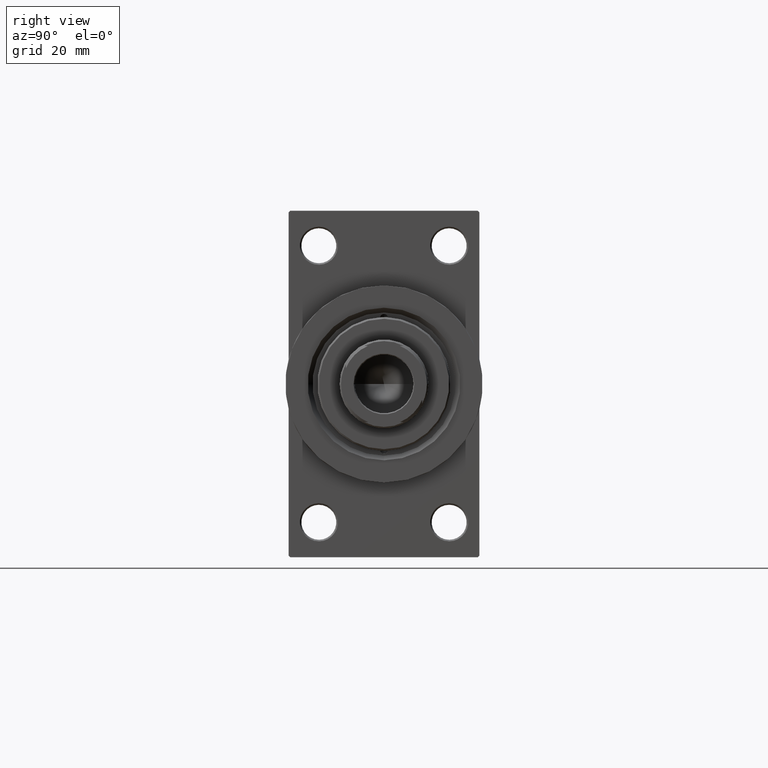
[diagram: clean part render]
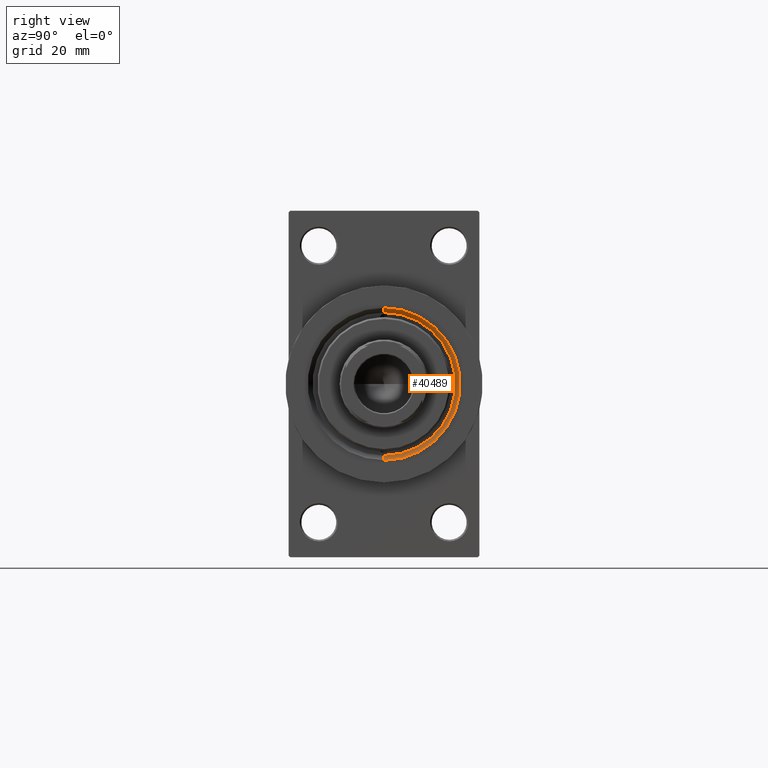
[diagram: same view with one face highlighted and labeled with its STEP entity id]
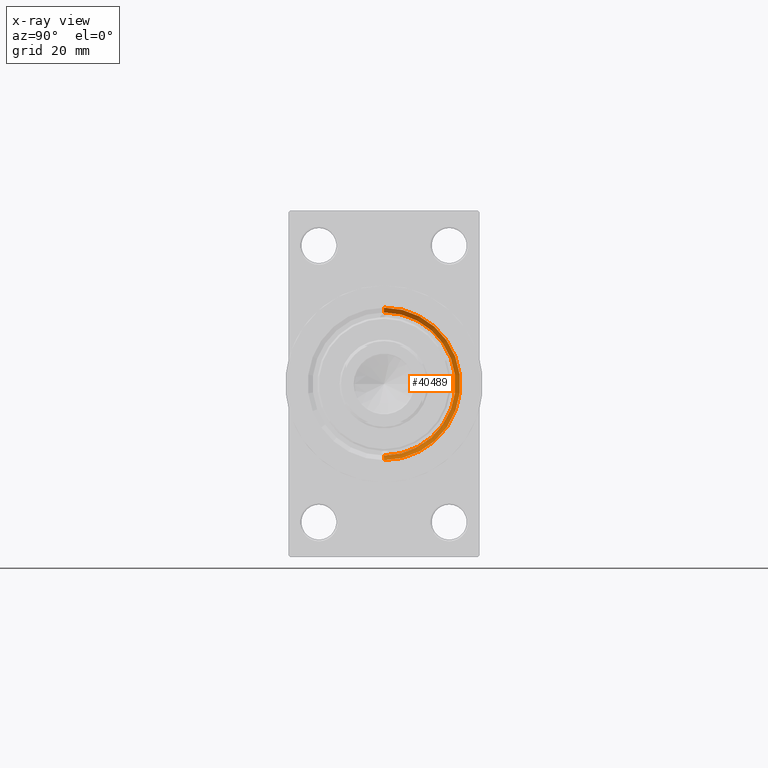
[diagram: x-ray of the same camera — body ghosted, the highlighted face saturated]
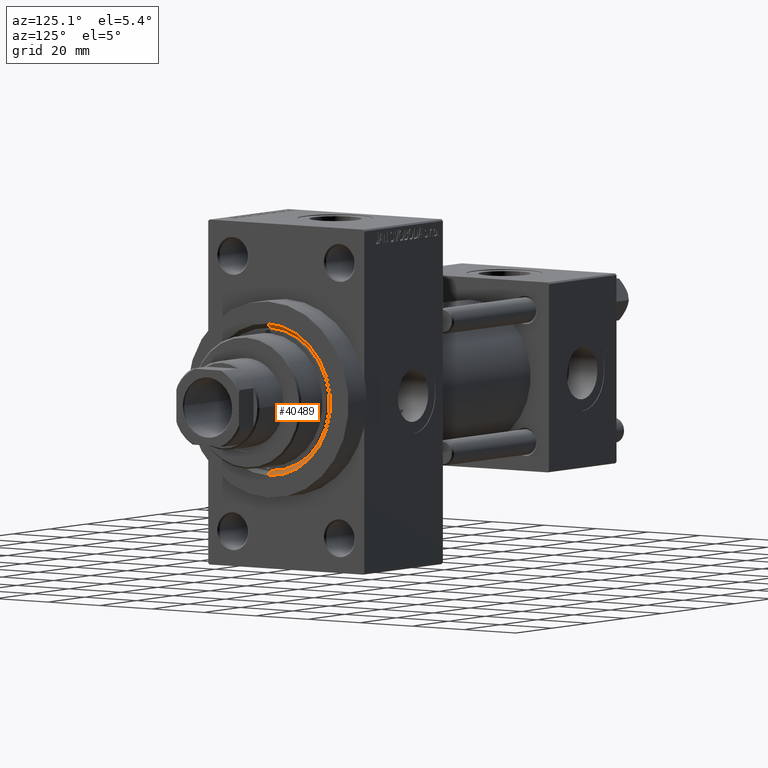
[diagram: same view with one face highlighted and labeled with its STEP entity id]
A machine part, right view. The second image highlights one B-rep face of the part: STEP entity #40489.
The next image is the same camera in x-ray: the body ghosted, the highlighted face saturated — about 0% of this face is hidden behind the body in this view.
A second angle (auxiliary view) of the same face is appended — the face is thin or edge-on in the first view.
In plain terms, the highlighted conical surface has half-angle 45 deg.
Its self-contained STEP definition (entity closure, byte-faithful):
#1467 = DIRECTION ( 'NONE',  ( 0.000000000000000000, 0.000000000000000000, -1.000000000000000000 ) ) ;
#1758 = EDGE_LOOP ( 'NONE', ( #42320, #38350, #47140, #29955 ) ) ;
#3350 = DIRECTION ( 'NONE',  ( 0.000000000000000000, 0.000000000000000000, -1.000000000000000000 ) ) ;
#3539 = CIRCLE ( 'NONE', #23790, 23.99999999999999645 ) ;
#5730 = EDGE_CURVE ( 'NONE', #26597, #29415, #32184, .T. ) ;
#6543 = FACE_OUTER_BOUND ( 'NONE', #1758, .T. ) ;
#10142 = CONICAL_SURFACE ( 'NONE', #43625, 22.50000000000000355, 0.7853981633974459475 ) ;
#11363 = EDGE_CURVE ( 'NONE', #26597, #22106, #35154, .T. ) ;
#13220 = VERTEX_POINT ( 'NONE', #38244 ) ;
#13887 = CARTESIAN_POINT ( 'NONE',  ( 146.5000000000000284, 0.000000000000000000, -22.50000000000000355 ) ) ;
#17800 = DIRECTION ( 'NONE',  ( -1.000000000000000000, -0.000000000000000000, -0.000000000000000000 ) ) ;
#19836 = DIRECTION ( 'NONE',  ( 0.7071067811865491270, 8.659560562354911904E-17, 0.7071067811865459074 ) ) ;
#20097 = VECTOR ( 'NONE', #19836, 1000.000000000000114 ) ;
#22106 = VERTEX_POINT ( 'NONE', #31946 ) ;
#22997 = CARTESIAN_POINT ( 'NONE',  ( 146.5000000000000284, 0.000000000000000000, -22.50000000000000355 ) ) ;
#23790 = AXIS2_PLACEMENT_3D ( 'NONE', #39020, #17800, #28307 ) ;
#25038 = AXIS2_PLACEMENT_3D ( 'NONE', #34893, #35859, #1467 ) ;
#26597 = VERTEX_POINT ( 'NONE', #22997 ) ;
#27731 = EDGE_CURVE ( 'NONE', #13220, #29415, #3539, .T. ) ;
#28307 = DIRECTION ( 'NONE',  ( 0.000000000000000000, 0.000000000000000000, -1.000000000000000000 ) ) ;
#29415 = VERTEX_POINT ( 'NONE', #45369 ) ;
#29955 = ORIENTED_EDGE ( 'NONE', *, *, #27731, .F. ) ;
#31946 = CARTESIAN_POINT ( 'NONE',  ( 146.5000000000000284, 2.755455298081545172E-15, 22.50000000000000355 ) ) ;
#32184 = LINE ( 'NONE', #13887, #39645 ) ;
#33327 = CARTESIAN_POINT ( 'NONE',  ( 146.5000000000000284, 2.755455298081545172E-15, 22.50000000000000355 ) ) ;
#34893 = CARTESIAN_POINT ( 'NONE',  ( 146.5000000000000284, 0.000000000000000000, 0.000000000000000000 ) ) ;
#35154 = CIRCLE ( 'NONE', #25038, 22.50000000000000355 ) ;
#35859 = DIRECTION ( 'NONE',  ( 1.000000000000000000, 0.000000000000000000, 0.000000000000000000 ) ) ;
#36261 = EDGE_CURVE ( 'NONE', #22106, #13220, #37224, .T. ) ;
#37224 = LINE ( 'NONE', #33327, #20097 ) ;
#38244 = CARTESIAN_POINT ( 'NONE',  ( 148.0000000000000284, 2.939152317953647500E-15, 23.99999999999999645 ) ) ;
#38350 = ORIENTED_EDGE ( 'NONE', *, *, #11363, .F. ) ;
#39020 = CARTESIAN_POINT ( 'NONE',  ( 148.0000000000000284, 0.000000000000000000, 0.000000000000000000 ) ) ;
#39645 = VECTOR ( 'NONE', #43866, 1000.000000000000114 ) ;
#40489 = ADVANCED_FACE ( 'NONE', ( #6543 ), #10142, .F. ) ;
#42320 = ORIENTED_EDGE ( 'NONE', *, *, #36261, .F. ) ;
#43625 = AXIS2_PLACEMENT_3D ( 'NONE', #47977, #47747, #3350 ) ;
#43866 = DIRECTION ( 'NONE',  ( 0.7071067811865491270, 0.000000000000000000, -0.7071067811865459074 ) ) ;
#45369 = CARTESIAN_POINT ( 'NONE',  ( 148.0000000000000284, 0.000000000000000000, -23.99999999999999645 ) ) ;
#47140 = ORIENTED_EDGE ( 'NONE', *, *, #5730, .T. ) ;
#47747 = DIRECTION ( 'NONE',  ( 1.000000000000000000, 0.000000000000000000, 0.000000000000000000 ) ) ;
#47977 = CARTESIAN_POINT ( 'NONE',  ( 146.5000000000000284, 0.000000000000000000, 0.000000000000000000 ) ) ;